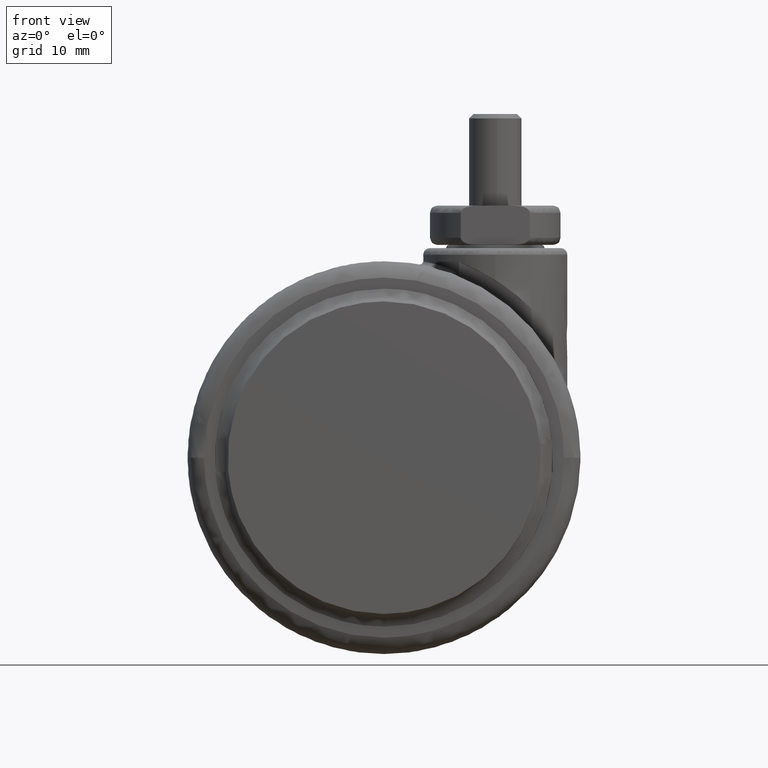
[diagram: clean part render]
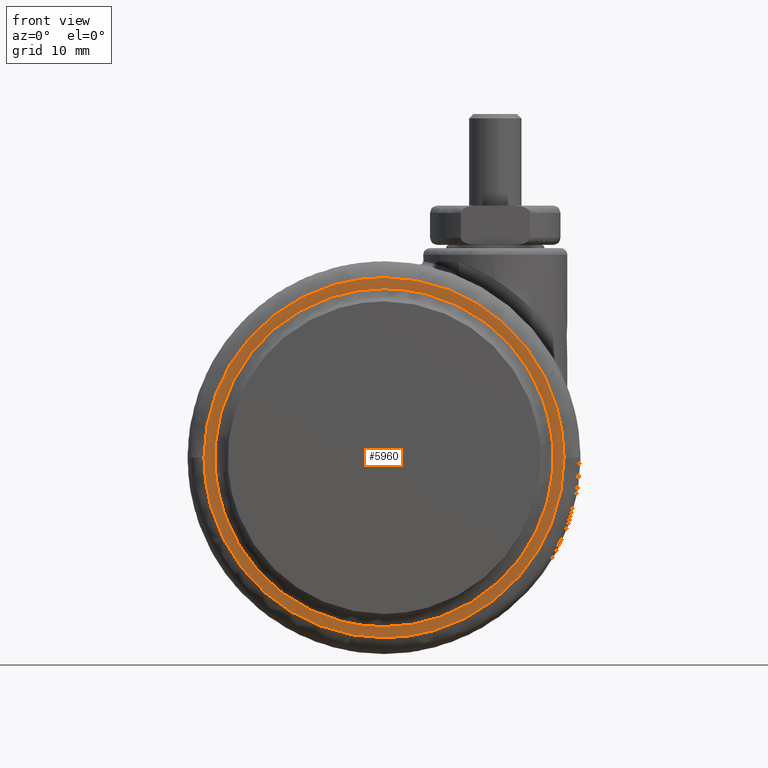
[diagram: same view with one face highlighted and labeled with its STEP entity id]
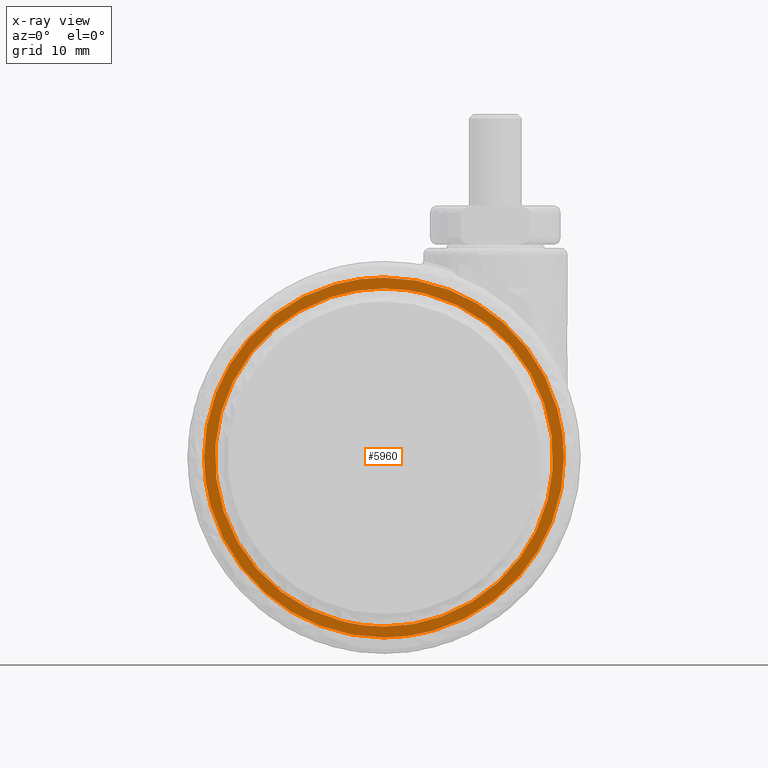
[diagram: x-ray of the same camera — body ghosted, the highlighted face saturated]
A machine part, front view. The second image highlights one B-rep face of the part: STEP entity #5960.
The next image is the same camera in x-ray: the body ghosted, the highlighted face saturated — about 0% of this face is hidden behind the body in this view.
In plain terms, the highlighted face is a freeform B-spline surface patch.
Its self-contained STEP definition (entity closure, byte-faithful):
#5724=CARTESIAN_POINT('',(6.421546835158104,-21.000000005050278,25.010273653796339));
#5725=VERTEX_POINT('',#5724);
#5739=CARTESIAN_POINT('',(0.0,-20.999999999999879,25.821503697082171));
#5740=VERTEX_POINT('',#5739);
#5741=CARTESIAN_POINT('',(0.0,-20.999999999999879,25.821503697082171));
#5742=CARTESIAN_POINT('',(3.262014509748399,-21.000000002525073,25.821503685974125));
#5743=CARTESIAN_POINT('',(6.421546835158104,-21.000000005050278,25.010273653796343));
#5751=(BOUNDED_CURVE()B_SPLINE_CURVE(2,(#5741,#5742,#5743),.UNSPECIFIED.,.F.,.U.)B_SPLINE_CURVE_WITH_KNOTS((3,3),(0.0,0.042443238243231),.UNSPECIFIED.)CURVE()GEOMETRIC_REPRESENTATION_ITEM()RATIONAL_B_SPLINE_CURVE((1.0,0.950274653336295,0.917433344553990))REPRESENTATION_ITEM(''));
#5752=EDGE_CURVE('',#5740,#5725,#5751,.T.);
#5754=CARTESIAN_POINT('',(-6.421546835158111,-21.000000005050332,-25.010273653796350));
#5755=VERTEX_POINT('',#5754);
#5756=CARTESIAN_POINT('',(-6.421546835158111,-21.000000005050332,-25.010273653796350));
#5757=CARTESIAN_POINT('',(-7.739284760742868,-21.000000005033581,-24.672037174571500));
#5758=CARTESIAN_POINT('',(-9.952221705869244,-21.000000004986589,-23.912983992158178));
#5759=CARTESIAN_POINT('',(-13.256720646620719,-21.000000004864969,-22.251735861255600));
#5760=CARTESIAN_POINT('',(-16.110255895219371,-21.000000004709001,-20.294026141195118));
#5761=CARTESIAN_POINT('',(-18.650782658554199,-21.000000004510600,-17.949508823398819));
#5762=CARTESIAN_POINT('',(-20.887738592147080,-21.000000004281489,-15.316097655053900));
#5763=CARTESIAN_POINT('',(-22.593813004822181,-21.000000004040711,-12.646639362233820));
#5764=CARTESIAN_POINT('',(-23.966054362913621,-21.000000003774449,-9.744169840399655));
#5765=CARTESIAN_POINT('',(-24.924588562376581,-21.000000003515609,-6.985563047818582));
#5766=CARTESIAN_POINT('',(-25.603913920902489,-21.000000003217249,-3.845200900784501));
#5767=CARTESIAN_POINT('',(-25.863265820859802,-21.000000002927870,-0.837580243896235));
#5768=CARTESIAN_POINT('',(-25.771837062619991,-21.000000002590749,2.566271353175968));
#5769=CARTESIAN_POINT('',(-25.260610278235141,-21.000000002275911,5.743683704557953));
#5770=CARTESIAN_POINT('',(-24.360908826126600,-21.000000001977732,8.674146420447249));
#5771=CARTESIAN_POINT('',(-23.286156311025220,-21.000000001709459,11.281633515796880));
#5772=CARTESIAN_POINT('',(-21.975901718719509,-21.000000001459370,13.674029520833500));
#5773=CARTESIAN_POINT('',(-20.280960846868890,-21.000000001206029,16.050082478133859));
#5774=CARTESIAN_POINT('',(-18.327744342291989,-21.000000000963421,18.284403337130229));
#5775=CARTESIAN_POINT('',(-16.036926746966550,-21.000000000735319,20.327117109836141));
#5776=CARTESIAN_POINT('',(-13.508946520605321,-21.000000000534548,22.060992526775632));
#5777=CARTESIAN_POINT('',(-11.242120355744239,-21.000000000386379,23.289840853553240));
#5778=CARTESIAN_POINT('',(-8.555163802441928,-21.000000000241570,24.428455367301360));
#5779=CARTESIAN_POINT('',(-4.858684774510749,-21.000000000092129,25.500459053653461));
#5780=CARTESIAN_POINT('',(-1.797776154331118,-21.000000000021089,25.821811969240009));
#5781=CARTESIAN_POINT('',(0.0,-20.999999999999879,25.821503697082171));
#5782=B_SPLINE_CURVE_WITH_KNOTS('',3,(#5756,#5757,#5758,#5759,#5760,#5761,#5762,#5763,#5764,#5765,#5766,#5767,#5768,#5769,#5770,#5771,#5772,#5773,#5774,#5775,#5776,#5777,#5778,#5779,#5780,#5781),.UNSPECIFIED.,.F.,.U.,(4,1,1,1,1,1,1,1,1,1,1,1,1,1,1,1,1,1,1,1,1,1,1,4),(0.000000088703828,4.081352344097468,6.996655644656769,11.078050646407430,14.430625690676370,17.345903946844100,21.427317297605178,23.905279009634530,26.966327936139351,30.173142178287009,33.525714711365957,36.003643246793857,40.376586186493832,43.146083462793570,45.186788813116642,48.830882496293867,51.308867169752261,53.932626624253828,57.722493205932651,60.492012049680717,63.115764106018403,65.447981660634738,69.237834039481754,74.631093687800600),.UNSPECIFIED.);
#5783=EDGE_CURVE('',#5755,#5740,#5782,.T.);
#5838=CARTESIAN_POINT('',(0.0,-21.0,-25.821503697082200));
#5839=VERTEX_POINT('',#5838);
#5840=CARTESIAN_POINT('',(0.0,-21.0,-25.821503697082200));
#5841=CARTESIAN_POINT('',(-3.262014509748403,-21.000000002525159,-25.821503685974150));
#5842=CARTESIAN_POINT('',(-6.421546835158111,-21.000000005050325,-25.010273653796350));
#5850=(BOUNDED_CURVE()B_SPLINE_CURVE(2,(#5840,#5841,#5842),.UNSPECIFIED.,.F.,.U.)B_SPLINE_CURVE_WITH_KNOTS((3,3),(0.500000000000000,0.542443238243231),.UNSPECIFIED.)CURVE()GEOMETRIC_REPRESENTATION_ITEM()RATIONAL_B_SPLINE_CURVE((1.0,0.950274653336295,0.917433344553990))REPRESENTATION_ITEM(''));
#5851=EDGE_CURVE('',#5839,#5755,#5850,.T.);
#5853=CARTESIAN_POINT('',(6.421546835158104,-21.000000005050278,25.010273653796339));
#5854=CARTESIAN_POINT('',(7.880490929392013,-21.000000005031641,24.635839954373569));
#5855=CARTESIAN_POINT('',(10.088437136148491,-21.000000004982919,23.857451613721398));
#5856=CARTESIAN_POINT('',(13.074333804246830,-21.000000004869769,22.324469459749668));
#5857=CARTESIAN_POINT('',(15.840101852968630,-21.000000004726289,20.506404544946609));
#5858=CARTESIAN_POINT('',(18.576241320246901,-21.000000004522722,18.079793424928440));
#5859=CARTESIAN_POINT('',(20.878069262419562,-21.000000004280022,15.306923767951231));
#5860=CARTESIAN_POINT('',(22.791256329625419,-21.000000004010928,12.313500235058539));
#5861=CARTESIAN_POINT('',(24.215008446252011,-21.000000003725191,9.212141927469830));
#5862=CARTESIAN_POINT('',(25.158987670901428,-21.000000003426681,6.039806749697010));
#5863=CARTESIAN_POINT('',(25.618470654082710,-21.000000003184120,3.502583905186024));
#5864=CARTESIAN_POINT('',(25.890406303940029,-21.000000002889561,0.451270428508508));
#5865=CARTESIAN_POINT('',(25.756451049560710,-21.000000002543370,-3.057879933409395));
#5866=CARTESIAN_POINT('',(25.013778656063021,-21.000000002180840,-6.686036301426388));
#5867=CARTESIAN_POINT('',(23.929542018941049,-21.000000001855671,-9.863040432637508));
#5868=CARTESIAN_POINT('',(22.665328086081669,-21.000000001584361,-12.497369261022619));
#5869=CARTESIAN_POINT('',(20.787016615721921,-21.000000001268500,-15.454069594722800));
#5870=CARTESIAN_POINT('',(18.426940194486630,-21.000000000968601,-18.247800298447519));
#5871=CARTESIAN_POINT('',(15.503622200424671,-21.000000000687258,-20.752540389636390));
#5872=CARTESIAN_POINT('',(12.716869903872940,-21.000000000478039,-22.539294267825071));
#5873=CARTESIAN_POINT('',(10.224835111197830,-21.000000000328260,-23.756693471321100));
#5874=CARTESIAN_POINT('',(7.671559885313980,-21.000000000203819,-24.705055104419451));
#5875=CARTESIAN_POINT('',(4.324237432712797,-21.000000000079350,-25.564163866186131));
#5876=CARTESIAN_POINT('',(1.651985732154400,-21.000000000019028,-25.821683903652239));
#5877=CARTESIAN_POINT('',(0.0,-21.0,-25.821503697082200));
#5878=B_SPLINE_CURVE_WITH_KNOTS('',3,(#5853,#5854,#5855,#5856,#5857,#5858,#5859,#5860,#5861,#5862,#5863,#5864,#5865,#5866,#5867,#5868,#5869,#5870,#5871,#5872,#5873,#5874,#5875,#5876,#5877),.UNSPECIFIED.,.F.,.U.,(4,1,1,1,1,1,1,1,1,1,1,1,1,1,1,1,1,1,1,1,1,1,4),(0.000000088711886,4.518645634298551,6.996655644660336,10.057704642976921,14.430625690677161,17.928959633264821,20.844260261896419,25.071391079903481,28.132444788779310,30.756222130831620,32.796915644383112,37.315483125865832,41.251123331044973,43.874880880090757,47.373244702619687,49.996997195058611,54.369919743270088,58.305545271055223,61.512349487296959,64.281870060926096,66.614101690355270,69.675171397878941,74.631093687800600),.UNSPECIFIED.);
#5879=EDGE_CURVE('',#5725,#5839,#5878,.T.);
#5887=CARTESIAN_POINT('',(-30.247249893764408,-21.0,-30.247249893399331));
#5888=CARTESIAN_POINT('',(-30.247249893764408,-21.0,30.247251368614290));
#5889=CARTESIAN_POINT('',(30.247251368979370,-21.0,-30.247249893399331));
#5890=CARTESIAN_POINT('',(30.247251368979370,-21.0,30.247251368614290));
#5891=B_SPLINE_SURFACE_WITH_KNOTS('',1,1,((#5887,#5889),(#5888,#5890)),.UNSPECIFIED.,.F.,.F.,.U.,(2,2),(2,2),(0.0,60.494501262013607),(0.0,60.494501262743782),.UNSPECIFIED.);
#5892=CARTESIAN_POINT('',(-27.500000000331930,-21.0,-2.033979E-015));
#5893=VERTEX_POINT('',#5892);
#5894=CARTESIAN_POINT('',(0.0,-21.0,27.500000000000000));
#5895=VERTEX_POINT('',#5894);
#5896=CARTESIAN_POINT('',(-27.500000000331930,-21.0,-2.033979E-015));
#5897=CARTESIAN_POINT('',(-27.500000000165965,-20.999999999999989,27.499999999999993));
#5898=CARTESIAN_POINT('',(0.0,-21.0,27.500000000000000));
#5906=(BOUNDED_CURVE()B_SPLINE_CURVE(2,(#5896,#5897,#5898),.UNSPECIFIED.,.F.,.U.)B_SPLINE_CURVE_WITH_KNOTS((3,3),(0.750000000000000,1.0),.UNSPECIFIED.)CURVE()GEOMETRIC_REPRESENTATION_ITEM()RATIONAL_B_SPLINE_CURVE((1.0,0.707106781186547,1.0))REPRESENTATION_ITEM(''));
#5907=EDGE_CURVE('',#5893,#5895,#5906,.T.);
#5908=ORIENTED_EDGE('',*,*,#5907,.F.);
#5909=CARTESIAN_POINT('',(0.0,-21.0,-27.500000000000000));
#5910=VERTEX_POINT('',#5909);
#5911=CARTESIAN_POINT('',(0.0,-21.0,-27.500000000000000));
#5912=CARTESIAN_POINT('',(-27.500000000165965,-21.000000000000007,-27.499999999999993));
#5913=CARTESIAN_POINT('',(-27.500000000331930,-21.0,-2.033979E-015));
#5921=(BOUNDED_CURVE()B_SPLINE_CURVE(2,(#5911,#5912,#5913),.UNSPECIFIED.,.F.,.U.)B_SPLINE_CURVE_WITH_KNOTS((3,3),(0.500000000000000,0.750000000000000),.UNSPECIFIED.)CURVE()GEOMETRIC_REPRESENTATION_ITEM()RATIONAL_B_SPLINE_CURVE((1.0,0.707106781186547,1.0))REPRESENTATION_ITEM(''));
#5922=EDGE_CURVE('',#5910,#5893,#5921,.T.);
#5923=ORIENTED_EDGE('',*,*,#5922,.F.);
#5924=CARTESIAN_POINT('',(27.500000000331930,-21.0,2.634884E-016));
#5925=VERTEX_POINT('',#5924);
#5926=CARTESIAN_POINT('',(27.500000000331930,-21.0,2.634884E-016));
#5927=CARTESIAN_POINT('',(27.500000000165965,-21.000000000000007,-27.499999999999993));
#5928=CARTESIAN_POINT('',(0.0,-21.0,-27.500000000000000));
#5936=(BOUNDED_CURVE()B_SPLINE_CURVE(2,(#5926,#5927,#5928),.UNSPECIFIED.,.F.,.U.)B_SPLINE_CURVE_WITH_KNOTS((3,3),(0.250000000000000,0.500000000000000),.UNSPECIFIED.)CURVE()GEOMETRIC_REPRESENTATION_ITEM()RATIONAL_B_SPLINE_CURVE((1.0,0.707106781186547,1.0))REPRESENTATION_ITEM(''));
#5937=EDGE_CURVE('',#5925,#5910,#5936,.T.);
#5938=ORIENTED_EDGE('',*,*,#5937,.F.);
#5939=CARTESIAN_POINT('',(0.0,-21.0,27.500000000000000));
#5940=CARTESIAN_POINT('',(27.500000000165965,-20.999999999999989,27.499999999999993));
#5941=CARTESIAN_POINT('',(27.500000000331930,-21.0,2.634884E-016));
#5949=(BOUNDED_CURVE()B_SPLINE_CURVE(2,(#5939,#5940,#5941),.UNSPECIFIED.,.F.,.U.)B_SPLINE_CURVE_WITH_KNOTS((3,3),(0.0,0.250000000000000),.UNSPECIFIED.)CURVE()GEOMETRIC_REPRESENTATION_ITEM()RATIONAL_B_SPLINE_CURVE((1.0,0.707106781186547,1.0))REPRESENTATION_ITEM(''));
#5950=EDGE_CURVE('',#5895,#5925,#5949,.T.);
#5951=ORIENTED_EDGE('',*,*,#5950,.F.);
#5952=EDGE_LOOP('',(#5908,#5923,#5938,#5951));
#5953=FACE_OUTER_BOUND('',#5952,.T.);
#5954=ORIENTED_EDGE('',*,*,#5752,.T.);
#5955=ORIENTED_EDGE('',*,*,#5879,.T.);
#5956=ORIENTED_EDGE('',*,*,#5851,.T.);
#5957=ORIENTED_EDGE('',*,*,#5783,.T.);
#5958=EDGE_LOOP('',(#5954,#5955,#5956,#5957));
#5959=FACE_BOUND('',#5958,.T.);
#5960=ADVANCED_FACE('',(#5953,#5959),#5891,.F.);